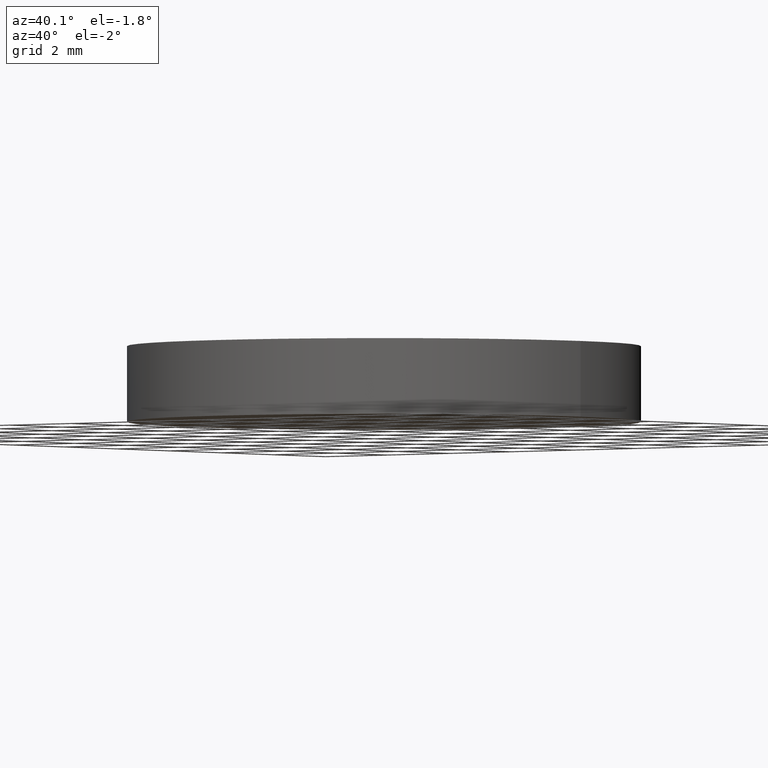
[diagram: clean part render]
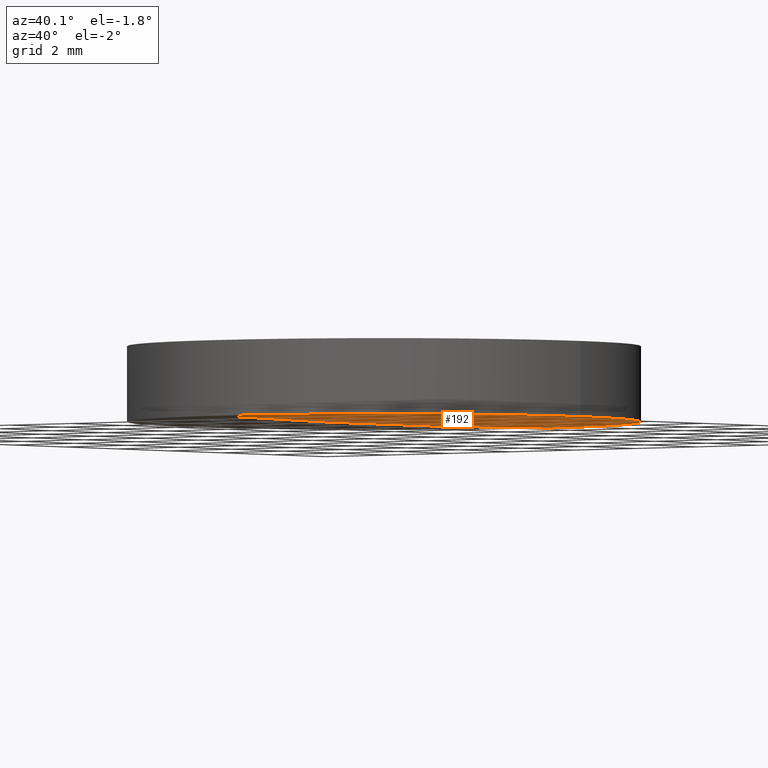
[diagram: same view with one face highlighted and labeled with its STEP entity id]
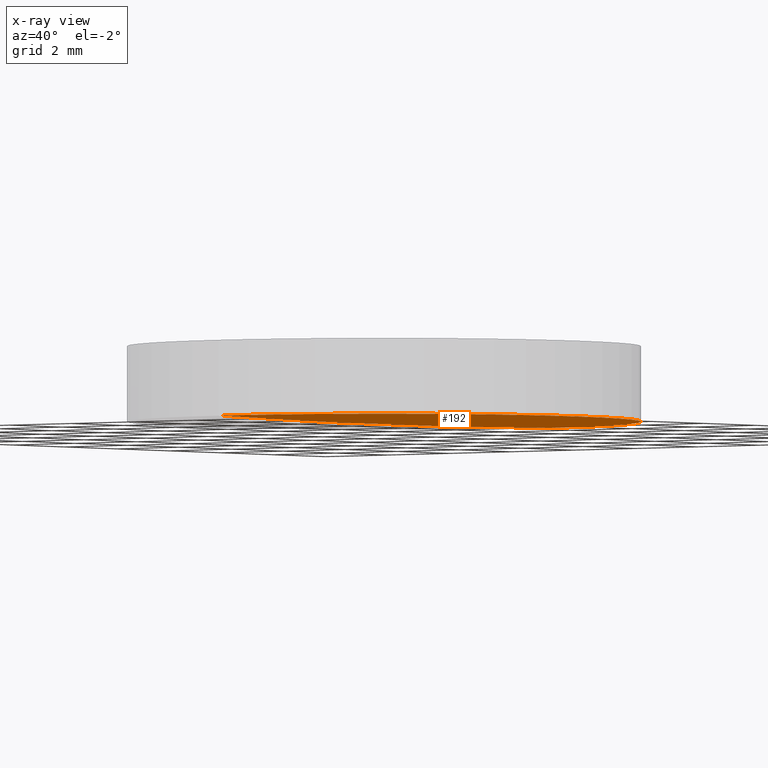
[diagram: x-ray of the same camera — body ghosted, the highlighted face saturated]
A machine part, auxiliary view. The second image highlights one B-rep face of the part: STEP entity #192.
The next image is the same camera in x-ray: the body ghosted, the highlighted face saturated — about 0% of this face is hidden behind the body in this view.
In plain terms, the highlighted face is a freeform B-spline surface patch.
Its self-contained STEP definition (entity closure, byte-faithful):
#4 = EDGE_LOOP ( 'NONE', ( #237, #232, #241 ) ) ;
#7 = DIRECTION ( 'NONE',  ( -0.0000000000000000000, -0.0000000000000000000, -1.000000000000000000 ) ) ;
#8 = CARTESIAN_POINT ( 'NONE',  ( 2.129097252843780400, -6.426189210769722500, 0.06642058453948315700 ) ) ;
#10 = CARTESIAN_POINT ( 'NONE',  ( 2.129097252843785300, 6.426189210769622100, 0.06642058453948315700 ) ) ;
#11 = AXIS2_PLACEMENT_3D ( 'NONE', #200, #34, #131 ) ;
#29 = CARTESIAN_POINT ( 'NONE',  ( 2.498001805406600200E-016, 1.221245327087670000E-015, 0.06485478633533430000 ) ) ;
#32 = CARTESIAN_POINT ( 'NONE',  ( 6.386729902696659500, 6.426189210769621200, 0.1320419132992240500 ) ) ;
#34 = DIRECTION ( 'NONE',  ( 1.000000000000000000, -3.738639560994800200E-016, -3.230945461933270100E-016 ) ) ;
#55 = CARTESIAN_POINT ( 'NONE',  ( 2.129703883656321600, -2.142368200197973600, -0.02214334864551471100 ) ) ;
#61 = CARTESIAN_POINT ( 'NONE',  ( -9.805510406251405700E-014, 6.350000000000327400, 0.06485478633533377200 ) ) ;
#82 = DIRECTION ( 'NONE',  ( 1.000000000000000000, 0.0000000000000000000, 0.0000000000000000000 ) ) ;
#100 = CIRCLE ( 'NONE', #283, 6.349999999999999600 ) ;
#101 = VERTEX_POINT ( 'NONE', #61 ) ;
#104 = DIRECTION ( 'NONE',  ( -0.0000000000000000000, -0.0000000000000000000, -1.000000000000000000 ) ) ;
#107 = CARTESIAN_POINT ( 'NONE',  ( 6.386729902696655100, -6.426189210769724300, 0.1320419132992240500 ) ) ;
#109 = CARTESIAN_POINT ( 'NONE',  ( -1.012582030574349200E-013, -2.142368200197972300, -0.02214334864551402400 ) ) ;
#126 = EDGE_CURVE ( 'NONE', #101, #294, #150, .T. ) ;
#131 = DIRECTION ( 'NONE',  ( -3.738639560994798700E-016, -1.000000000000000000, 3.570997184384549400E-016 ) ) ;
#133 = CARTESIAN_POINT ( 'NONE',  ( 6.388549635048088100, 2.142368200197871900, 0.04349667720283109000 ) ) ;
#136 = DIRECTION ( 'NONE',  ( 1.000000000000000000, -1.776356839400250500E-015, 0.0000000000000000000 ) ) ;
#147 =( BOUNDED_SURFACE ( )  B_SPLINE_SURFACE ( 3, 3, ( 
 ( #269, #8, #205, #107 ),
 ( #109, #55, #225, #178 ),
 ( #251, #270, #229, #133 ),
 ( #292, #10, #177, #32 ) ),
 .UNSPECIFIED., .F., .F., .F. ) 
 B_SPLINE_SURFACE_WITH_KNOTS ( ( 4, 4 ),
 ( 4, 4 ),
 ( 0.0000000000000000000, 1.000000000000000000 ),
 ( 0.0000000000000000000, 1.000000000000000000 ),
 .UNSPECIFIED. ) 
 GEOMETRIC_REPRESENTATION_ITEM ( )  RATIONAL_B_SPLINE_SURFACE ( (
 ( 1.000000000000000000, 0.9999648134002164800, 0.9999648134002164800, 1.000000000000000000),
 ( 0.9998575735294530400, 0.9998223919411727300, 0.9998223919411727300, 0.9998575735294530400),
 ( 0.9998575735294530400, 0.9998223919411727300, 0.9998223919411727300, 0.9998575735294530400),
 ( 1.000000000000000000, 0.9999648134002164800, 0.9999648134002164800, 1.000000000000000000) ) ) 
 REPRESENTATION_ITEM ( '' )  SURFACE ( )  );
#150 = CIRCLE ( 'NONE', #287, 6.349999999999999600 ) ;
#158 = EDGE_CURVE ( 'NONE', #189, #101, #193, .T. ) ;
#177 = CARTESIAN_POINT ( 'NONE',  ( 4.258082132148264700, 6.426189210769621200, 0.08829513048361237200 ) ) ;
#178 = CARTESIAN_POINT ( 'NONE',  ( 6.388549635048086400, -2.142368200197974500, 0.04349667720283131900 ) ) ;
#189 = VERTEX_POINT ( 'NONE', #275 ) ;
#190 = EDGE_CURVE ( 'NONE', #294, #189, #100, .T. ) ;
#192 = ADVANCED_FACE ( 'NONE', ( #231 ), #147, .T. ) ;
#193 = CIRCLE ( 'NONE', #11, 310.9000000000000300 ) ;
#200 = CARTESIAN_POINT ( 'NONE',  ( 0.0000000000000000000, -5.684341886080800200E-014, 310.9000000000000300 ) ) ;
#205 = CARTESIAN_POINT ( 'NONE',  ( 4.258082132148259400, -6.426189210769723400, 0.08829513048361237200 ) ) ;
#225 = CARTESIAN_POINT ( 'NONE',  ( 4.259295361755426300, -2.142368200197974000, -0.0002625701192137525300 ) ) ;
#229 = CARTESIAN_POINT ( 'NONE',  ( 4.259295361755428100, 2.142368200197873200, -0.0002625701192139829300 ) ) ;
#231 = FACE_OUTER_BOUND ( 'NONE', #4, .T. ) ;
#232 = ORIENTED_EDGE ( 'NONE', *, *, #158, .T. ) ;
#237 = ORIENTED_EDGE ( 'NONE', *, *, #190, .T. ) ;
#241 = ORIENTED_EDGE ( 'NONE', *, *, #126, .T. ) ;
#249 = CARTESIAN_POINT ( 'NONE',  ( 2.498001805406600200E-016, 1.221245327087670000E-015, 0.06485478633533430000 ) ) ;
#251 = CARTESIAN_POINT ( 'NONE',  ( -9.965629455593948600E-014, 2.142368200197874100, -0.02214334864551425300 ) ) ;
#255 = CARTESIAN_POINT ( 'NONE',  ( 6.349999999999999600, 1.221245327087670000E-015, 0.06485478633533430000 ) ) ;
#269 = CARTESIAN_POINT ( 'NONE',  ( -1.028311548038678300E-013, -6.426189210769721600, 0.06642058453948385100 ) ) ;
#270 = CARTESIAN_POINT ( 'NONE',  ( 2.129703883656322900, 2.142368200197873700, -0.02214334864551494400 ) ) ;
#275 = CARTESIAN_POINT ( 'NONE',  ( -1.028031763049777000E-013, -6.350000000000383300, 0.06485478633533377200 ) ) ;
#283 = AXIS2_PLACEMENT_3D ( 'NONE', #249, #104, #82 ) ;
#287 = AXIS2_PLACEMENT_3D ( 'NONE', #29, #7, #136 ) ;
#292 = CARTESIAN_POINT ( 'NONE',  ( -9.802611376190354600E-014, 6.426189210769623900, 0.06642058453948385100 ) ) ;
#294 = VERTEX_POINT ( 'NONE', #255 ) ;